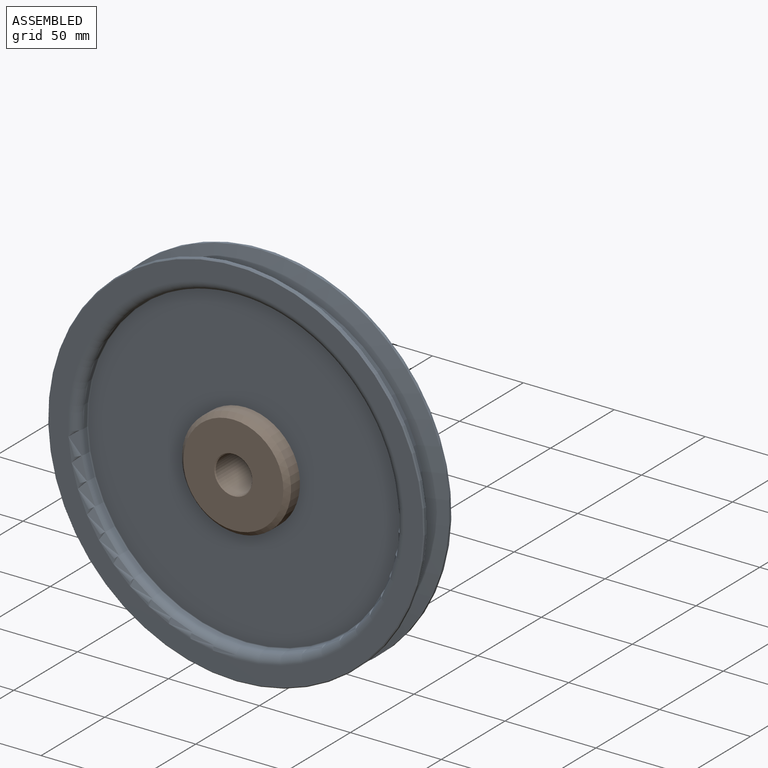
[diagram: assembled view]
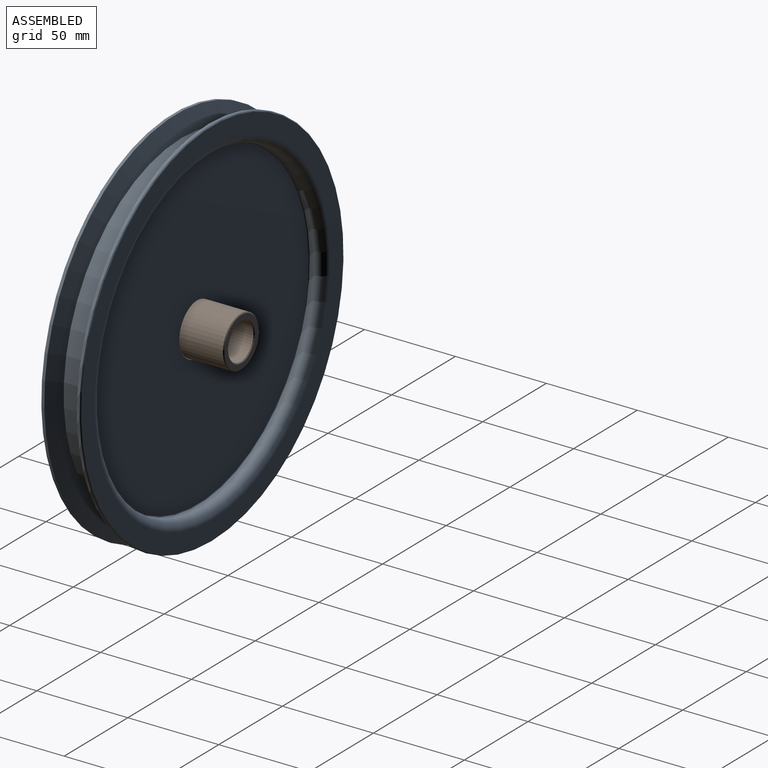
[diagram: assembled view, second angle]
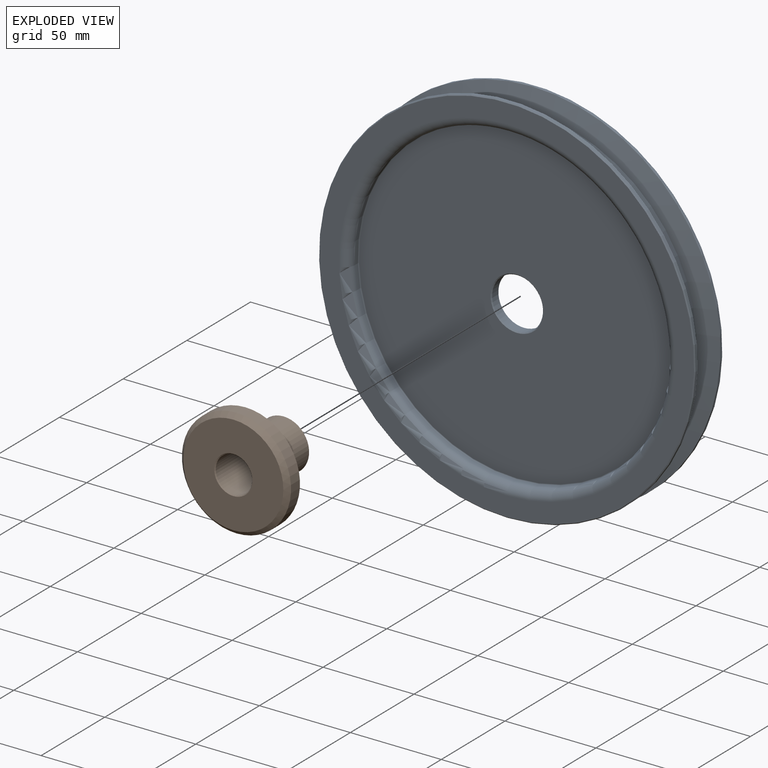
[diagram: exploded view]
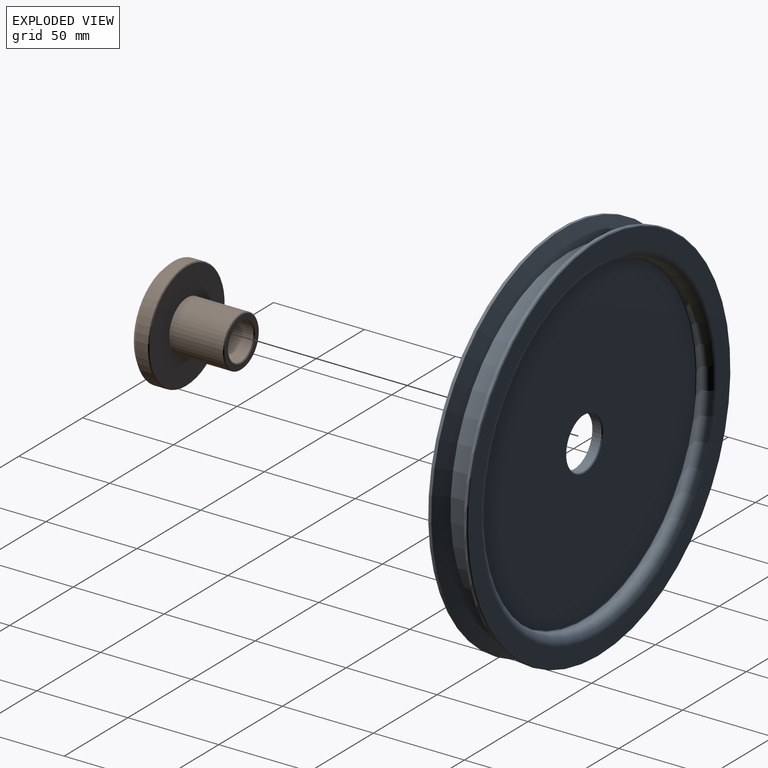
[diagram: exploded view, second angle]
ASSEMBLY  parts=2 mates=2
PART A: 20 faces, bbox 207.9x21.9x207.9 mm
  f0: cylinder r=92.5mm len=185mm, axis (0,1,0), area 6975.8mm2, adj f2,f5
  f1: cylinder r=103.5mm len=207mm, axis (0,-1,0), area 977.1mm2, adj f2,f14
  f2: cone r=92.5mm half-angle=75deg, axis (0,1,0), area 7012.2mm2, adj f0,f1
  f3: cylinder r=103.5mm len=207mm, axis (0,1,0), area 975.5mm2, adj f5,f15
  f4: plane 206x206mm, normal (0,-1,0), area 6591.8mm2, adj f12,f15
  f5: cone r=103.5mm half-angle=75deg, axis (0,-1,0), area 7012.2mm2, adj f0,f3
  f6: plane 206x206mm, normal (0,1,0), area 6448.9mm2, adj f11,f14
  f7: cylinder r=87.25mm len=174.51mm, axis (0,-1,0), area 1370.6mm2, adj f12,f18
  f8: plane 173.51x173.51mm, normal (0,-1,0), area 22983.9mm2, adj f16,f18
  f9: cylinder r=87.5mm len=175mm, axis (0,1,0), area 1374.4mm2, adj f11,f19
  f10: plane 174x174mm, normal (0,1,0), area 23118.2mm2, adj f17,f19
  f11: torus R=92.5mm, axis (0,-1,0), area 4407.6mm2, adj f6,f9
  f12: torus R=92.25mm, axis (0,-1,0), area 4395.5mm2, adj f4,f7
  f13: cylinder r=14mm len=28mm, axis (0,1,0), area 431mm2, adj f16,f17
  f14: cone r=103.5mm half-angle=45deg, axis (0,-1,0), area 458.7mm2, adj f1,f6
  f15: cone r=103mm half-angle=45deg, axis (0,1,0), area 458.7mm2, adj f3,f4
  f16: cone r=14mm half-angle=45deg, axis (0,-1,0), area 63.3mm2, adj f8,f13
  f17: cone r=14mm half-angle=45deg, axis (0,1,0), area 63.3mm2, adj f10,f13
  f18: torus R=86.75mm, axis (0,-1,0), area 429.7mm2, adj f7,f8
  f19: torus R=87mm, axis (0,1,0), area 430.9mm2, adj f9,f10
PART B: 11 faces, bbox 60x40x60 mm
  f0: cylinder r=30mm len=60mm, axis (0,1,0), area 1319.5mm2, adj f7,f8
  f1: plane 55x55mm, normal (0,-1,0), area 2029.5mm2, adj f8,f9
  f2: plane 59x59mm, normal (0,1,0), area 2118.2mm2, adj f3,f7
  f3: cylinder r=14mm len=29.5mm, axis (0,-1,0), area 2595mm2, adj f2,f6
  f4: plane 27x27mm, normal (0,1,0), area 226.2mm2, adj f6,f10
  f5: cylinder r=10mm len=39mm, axis (0,-1,0), area 2450.4mm2, adj f9,f10
  f6: cone r=14mm half-angle=45deg, axis (0,-1,0), area 61.1mm2, adj f3,f4
  f7: cone r=30mm half-angle=45deg, axis (0,-1,0), area 132.2mm2, adj f0,f2
  f8: cone r=27.5mm half-angle=45deg, axis (0,1,0), area 638.7mm2, adj f0,f1
  f9: cone r=10mm half-angle=45deg, axis (0,-1,0), area 45.5mm2, adj f1,f5
  f10: cone r=10.5mm half-angle=45deg, axis (0,1,0), area 45.5mm2, adj f4,f5
PLACE A t=(-17.85,-23.02,6.1)mm
PLACE B t=(-17.85,-34.97,6.1)mm
MATE slider B.f3 <-> A.f9  axis (0,1,0) through (-17.85,-34.97,6.1)mm
MATE slider B.f5 <-> A.f13  axis (0,-1,0) through (-17.85,-5.47,6.1)mm
